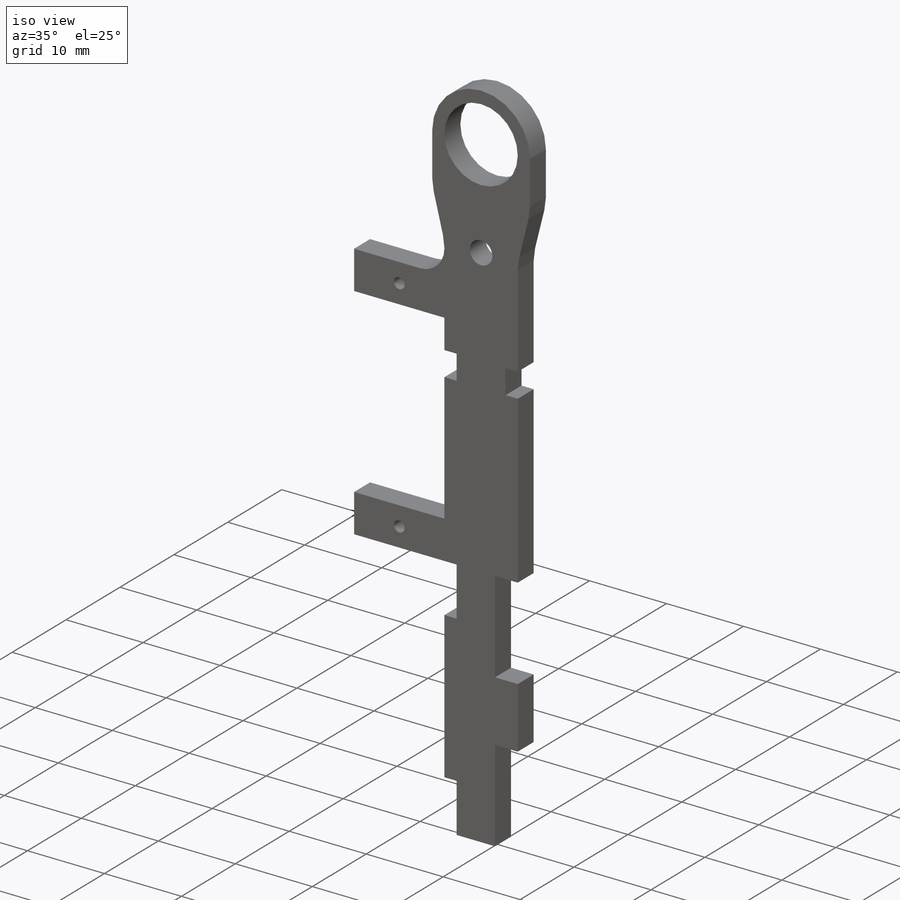
[diagram: iso view]
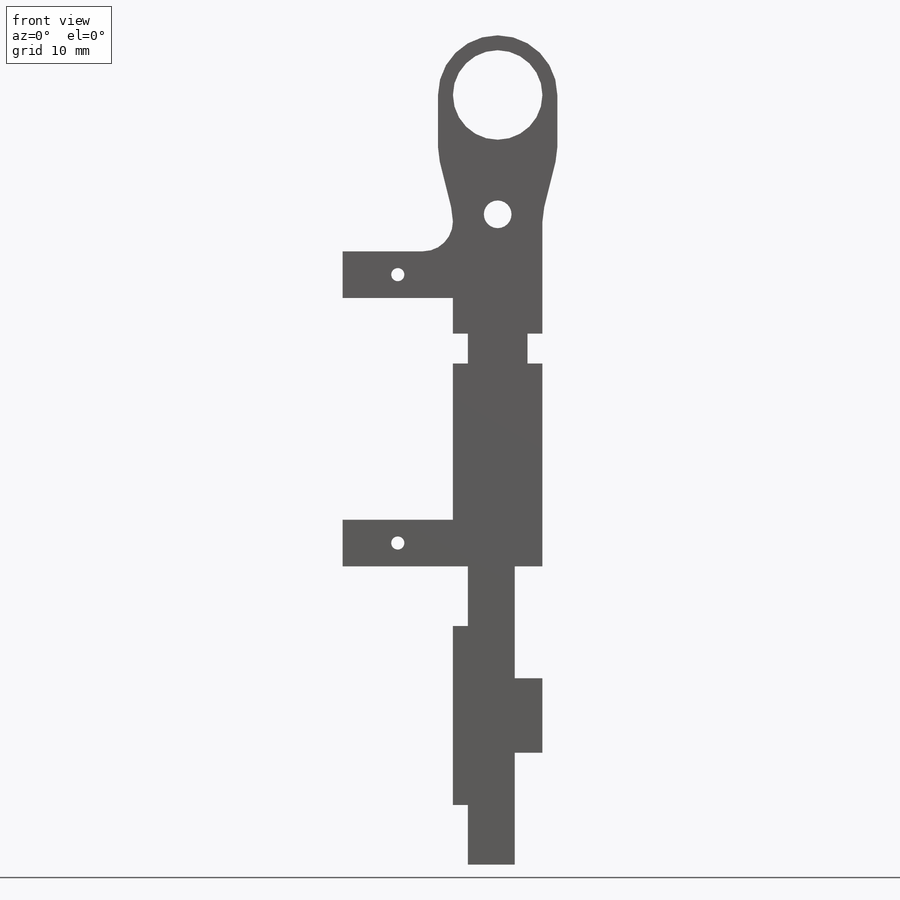
[diagram: front view]
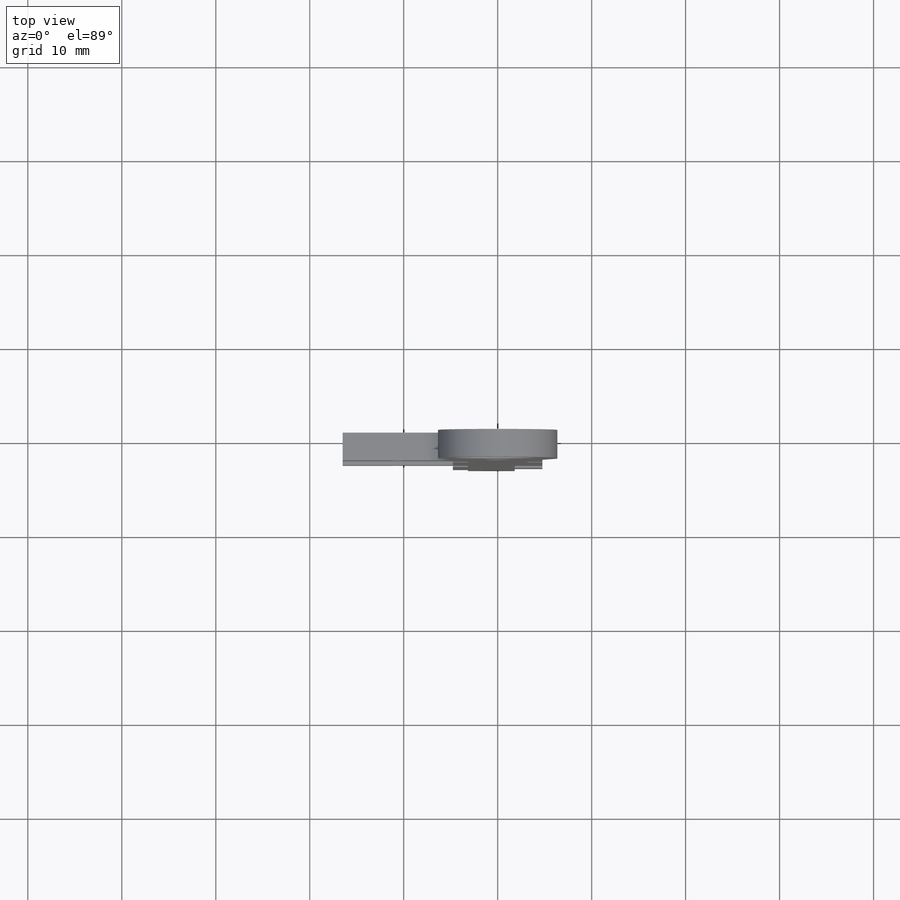
[diagram: top view]
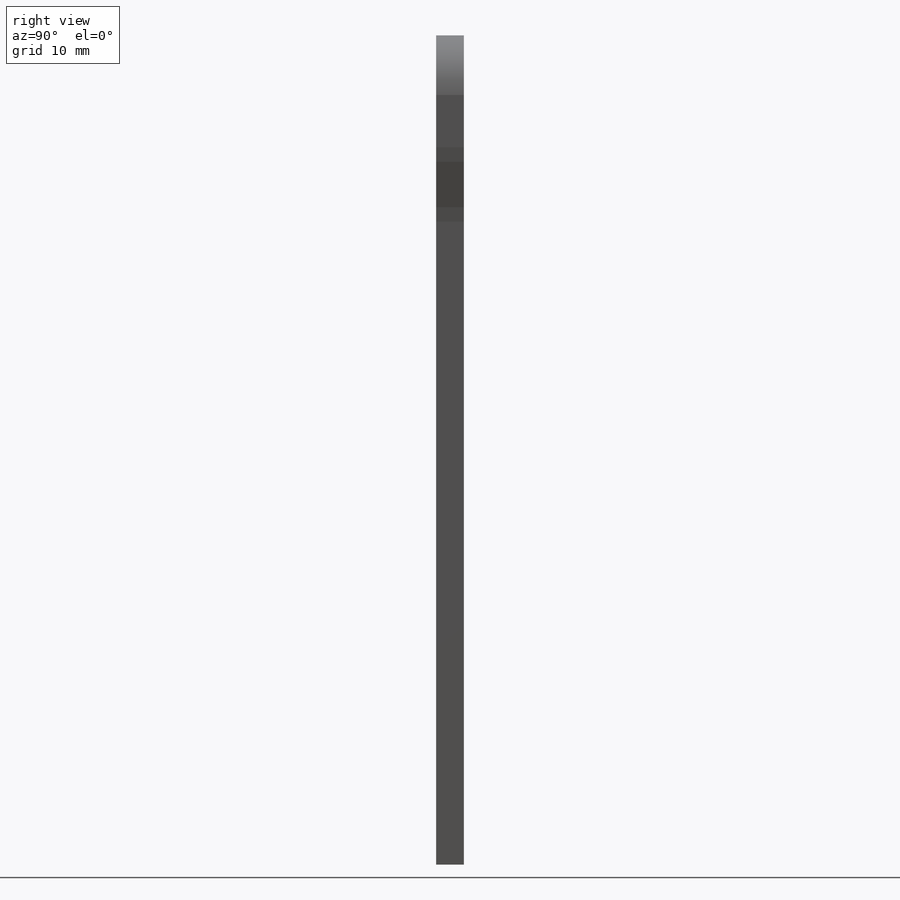
[diagram: right view]
SOLIDWORKS PART (.sldprt)
format: sldprt  version: not decoded by parser v0  size: 692,736 bytes
history: native  units: mm
features: sketch x11, extrude x3, cut_extrude x3, fillet x2, hole x2, material x1, plane x1, mirror x1, chamfer x1 (+12 scaffold rows collapsed)
feature tree (37):
  scaffold x12  (default folders/planes/origin — collapsed)
  material  "Material <not specified>"
  sketch  "Sketch1"  dims[c1.D2=6.35mm c1.D3=6.35mm c1.D4=6.35mm c2.D3=6.35mm c2.D2=6.35mm c2.D1=66.04mm c3.D2=101.6mm c3.D5=6.35mm c4.D2=1.5875mm c4.D5=11.176mm c4.D6=7.9375mm c4.D7=3.175mm c5.D6=7.9375mm c5.D7=2.9464mm c5.D8=12.7mm c5.D9=33.3375mm c6.D8=31.75mm c6.D9=1.5875mm c6.D10=6.35mm c6.D11=3.175mm c6.D6=~8.73125mm c7.D11=7.9375mm c7.D6=7.9375mm]
  extrude  "Boss-Extrude1"  Depth=2.9591mm
  sketch  "Sketch2"  dims[D1=3.175mm D2=12.7mm]
  sketch  "Sketch3"  dims[D1=3.175mm D2=13.97mm]
  cut_extrude  "Cut-Extrude3"  [1 undecoded]
  plane  "Plane1"
  mirror  "Mirror1"
  chamfer  "Chamfer1"  Distance=6.35mm Angle=45deg
  sketch  "Sketch8"  dims[D1=28.575mm D2=3.175mm D3=1.5875mm]
  cut_extrude  "Cut-Extrude4"  [1 undecoded]
  sketch  "Sketch4"  dims[c1.D1=2.032mm c1.D2=11.7348mm c1.D3=23.5966mm c1.D4=~6.332998mm c1.D5=~35.779996mm c2.D4=33.528mm c2.D5=31.75mm]
  extrude  "Boss-Extrude2"  [1 undecoded]
  fillet  "Fillet1"  Radius=3.175mm
  hole  "#0 Clearance Hole1"  Diameter=1.397mm Depth=2.9591mm
  sketch  "Sketch6"
  sketch  "Sketch7"  dims[hole-wizard template sketch: 59 standard entries collapsed; hole parameters kept: c18.Thru Hole Dia.=1.397mm c18.Thru Hole Depth=2.9591mm]
  hole  "#4 Clearance Hole1"  Diameter=2.9464mm Depth=2.9591mm
  sketch  "Sketch10"
  sketch  "Sketch9"  dims[hole-wizard template sketch: 60 standard entries collapsed; hole parameters kept: c18.Thru Hole Depth=2.9591mm]
  sketch  "Sketch11"  dims[D1=3.175mm D2=6.35mm D3=6.35mm]
  extrude  "Boss-Extrude3"  [1 undecoded]
  fillet  "Fillet2"  Radius=6.35mm
  sketch  "Sketch12"  dims[D1=9.525mm]
  cut_extrude  "Cut-Extrude5"  [1 undecoded]
decode coverage: 15 of 23 modeling features carry decoded parameters
note: ~ marks probable driven/reference dimensions
note: 5 parameter values undecoded
summary: no parameter record found for 5 features
note: suppression state not decoded; provenance and decode notes live in map.json
